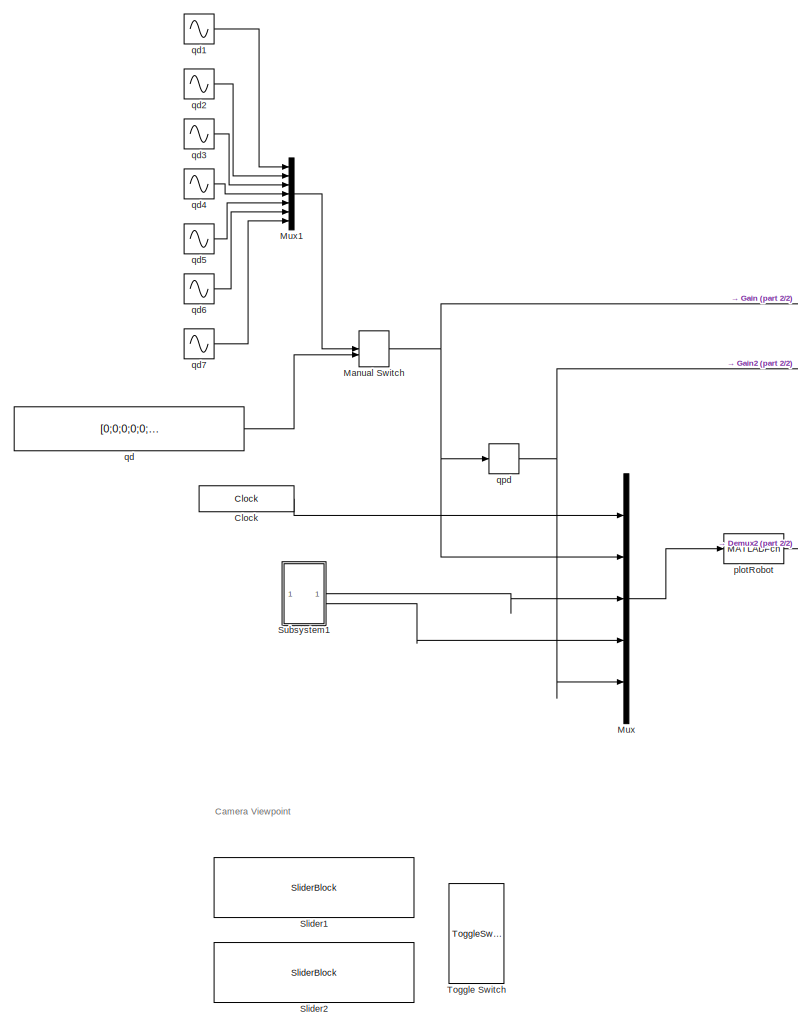
[diagram: root canvas - part 1/2, left side, full height]
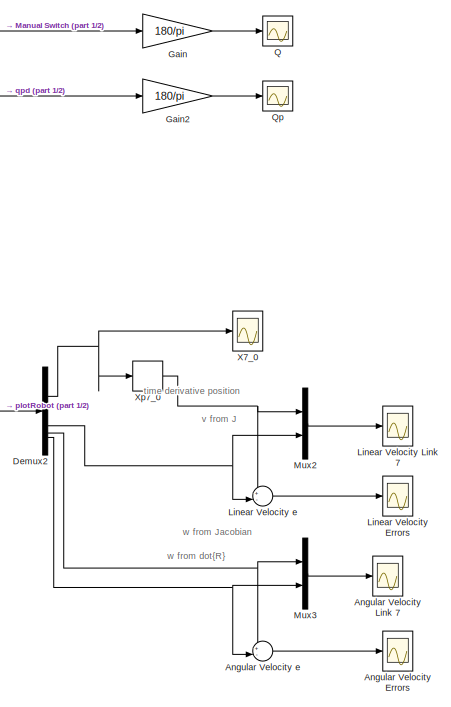
[diagram: root canvas - part 2/2, middle right region]
MODEL slx_c7681ada5e8a
KIND model
CONFIG AbsTol = auto
CONFIG EnableMultiTasking = on
CONFIG FixedStep = 0.001
CONFIG MaxStep = auto
CONFIG MinStep = auto
CONFIG RelTol = 1e-3
CONFIG SampleTimeConstraint = Unconstrained
CONFIG SolverName = ode1
CONFIG StartTime = 0.0
CONFIG StopTime = 20
BLOCK [Scope] Angular Velocity Errors
  Floating = off
  NumInputPorts = 1
  ScopeSpecificationString = Simulink.scopes.TimeScopeBlockCfg('CurrentConfiguration', extmgr.ConfigurationSet(extmgr.Configuration('Core','General UI',true),extmgr.Configuration('Core','Source UI',true),extmgr.Configuration('Sources','WiredSimulink',true,'DataLoggingVariableName','ScopeData2','DataLoggingSaveFormat','StructureWithTime','DataLoggingDecimation','1','DataLoggingDecimateData',true),extmgr.Configuration('Visuals'...<+1748ch>
BLOCK [Scope] Angular Velocity Link 7
  Floating = off
  NumInputPorts = 1
  ScopeSpecificationString = Simulink.scopes.TimeScopeBlockCfg('CurrentConfiguration', extmgr.ConfigurationSet(extmgr.Configuration('Core','General UI',true),extmgr.Configuration('Core','Source UI',true),extmgr.Configuration('Sources','WiredSimulink',true,'DataLoggingVariableName','ScopeData6','DataLoggingSaveFormat','StructureWithTime','DataLoggingDecimation','1','DataLoggingDecimateData',true),extmgr.Configuration('Visuals'...<+1786ch>
BLOCK [Sum] Angular Velocity e
  Inputs = +-|
BLOCK [Clock] Clock
  DisplayTime = on
BLOCK [Demux] Demux2
BLOCK [Gain] Gain
  Gain = 180/pi
BLOCK [Gain] Gain2
  Gain = 180/pi
BLOCK [Scope] Linear Velocity Errors
  Floating = off
  NumInputPorts = 1
  ScopeSpecificationString = Simulink.scopes.TimeScopeBlockCfg('CurrentConfiguration', extmgr.ConfigurationSet(extmgr.Configuration('Core','General UI',true),extmgr.Configuration('Core','Source UI',true),extmgr.Configuration('Sources','WiredSimulink',true,'DataLoggingVariableName','ScopeData1','DataLoggingSaveFormat','StructureWithTime','DataLoggingDecimation','1','DataLoggingDecimateData',true),extmgr.Configuration('Visuals'...<+1748ch>
BLOCK [Scope] Linear Velocity Link 7
  Floating = off
  NumInputPorts = 1
  ScopeSpecificationString = Simulink.scopes.TimeScopeBlockCfg('CurrentConfiguration', extmgr.ConfigurationSet(extmgr.Configuration('Core','General UI',true),extmgr.Configuration('Core','Source UI',true),extmgr.Configuration('Sources','WiredSimulink',true,'DataLoggingVariableName','ScopeData5','DataLoggingSaveFormat','StructureWithTime','DataLoggingDecimation','1','DataLoggingDecimateData',true),extmgr.Configuration('Visuals'...<+1749ch>
BLOCK [Sum] Linear Velocity e
  Inputs = +-|
BLOCK [ManualSwitch] Manual Switch
  CurrentSetting = 0
BLOCK [Mux] Mux
  DisplayOption = bar
  Inputs = 5
BLOCK [Mux] Mux1
  DisplayOption = bar
  Inputs = 7
BLOCK [Mux] Mux2
  DisplayOption = bar
  Inputs = 2
BLOCK [Mux] Mux3
  DisplayOption = bar
  Inputs = 2
BLOCK [Scope] Q
  Floating = off
  NumInputPorts = 1
  ScopeSpecificationString = Simulink.scopes.TimeScopeBlockCfg('CurrentConfiguration', extmgr.ConfigurationSet(extmgr.Configuration('Core','General UI',true),extmgr.Configuration('Core','Source UI',true),extmgr.Configuration('Sources','WiredSimulink',true,'DataLoggingSaveFormat','StructureWithTime','DataLoggingDecimation','1','DataLoggingDecimateData',true),extmgr.Configuration('Visuals','Time Domain',true,'SerializedDisplays...<+1604ch>
BLOCK [Scope] Qp
  Floating = off
  NumInputPorts = 1
  ScopeSpecificationString = Simulink.scopes.TimeScopeBlockCfg('CurrentConfiguration', extmgr.ConfigurationSet(extmgr.Configuration('Core','General UI',true),extmgr.Configuration('Core','Source UI',true),extmgr.Configuration('Sources','WiredSimulink',true,'DataLoggingSaveFormat','StructureWithTime','DataLoggingDecimation','1','DataLoggingDecimateData',true,'DataLoggingVariableName','ScopeData3'),extmgr.Configuration('Visuals'...<+1643ch>
BLOCK [SliderBlock] Slider1
  ScaleMax = 180
  ScaleMin = -180
  TickInterval = 180
BLOCK [SliderBlock] Slider2
  ScaleMax = 180
  ScaleMin = -180
  TickInterval = 180
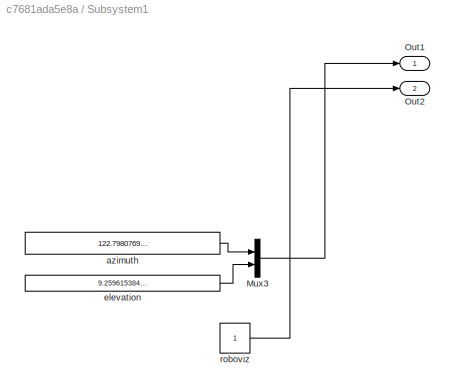
BLOCK [SubSystem] Subsystem1
BLOCK [Mux] Subsystem1/Mux3
  DisplayOption = bar
  Inputs = 2
BLOCK [Outport] Subsystem1/Out1
BLOCK [Outport] Subsystem1/Out2
  Port = 2
BLOCK [Constant] Subsystem1/azimuth
  Value = 122.7980769230769
BLOCK [Constant] Subsystem1/elevation
  Value = 9.259615384615358
BLOCK [Constant] Subsystem1/roboviz
BLOCK [ToggleSwitchBlock] Toggle Switch
BLOCK [Scope] X7_0
  Floating = off
  NumInputPorts = 1
  ScopeSpecificationString = Simulink.scopes.TimeScopeBlockCfg('CurrentConfiguration', extmgr.ConfigurationSet(extmgr.Configuration('Core','General UI',true),extmgr.Configuration('Core','Source UI',true),extmgr.Configuration('Sources','WiredSimulink',true,'DataLoggingVariableName','ScopeData1','DataLoggingSaveFormat','StructureWithTime','DataLoggingLimitDataPoints',true,'DataLoggingDecimation','1','DataLoggingDecimateData',tr...<+1739ch>
BLOCK [Derivative] Xp7_0
BLOCK [MATLABFcn] plotRobot
  MATLABFcn = plotRobot(u)
  OutputDimensions = 12
BLOCK [Constant] qd
  Value = [0;0;0;0;0;0;0]
BLOCK [Sin] qd1
  SampleTime = 0
BLOCK [Sin] qd2
  Amplitude = 0.5
  Bias = 0.3
  Frequency = 0.75
  SampleTime = 0
BLOCK [Sin] qd3
  Amplitude = pi
  Frequency = 0.5
  SampleTime = 0
BLOCK [Sin] qd4
  Amplitude = pi
  Frequency = 0.5
  SampleTime = 0
BLOCK [Sin] qd5
  Amplitude = pi
  Frequency = 0.5
  SampleTime = 0
BLOCK [Sin] qd6
  Amplitude = pi
  Frequency = 0.5
  SampleTime = 0
BLOCK [Sin] qd7
  Amplitude = pi
  Frequency = 0.5
  SampleTime = 0
BLOCK [Derivative] qpd
ANNOTATION (root): Camera Viewpoint
ANNOTATION (root): time derivative position
ANNOTATION (root): v from J
ANNOTATION (root): w from Jacobian
ANNOTATION (root): w from dot{R}
LINE Angular Velocity e:1 -> Angular Velocity Errors:1
LINE Clock:1 -> Mux:1
NET Demux2:1 -> X7_0:1, Xp7_0:1
NET Demux2:2 -> Linear Velocity e:2, Mux2:2
NET Demux2:3 -> Angular Velocity e:1, Mux3:1
NET Demux2:4 -> Angular Velocity e:2, Mux3:2
LINE Gain2:1 -> Qp:1
LINE Gain:1 -> Q:1
LINE Linear Velocity e:1 -> Linear Velocity Errors:1
NET Manual Switch:1 -> Gain:1, Mux:2, qpd:1
LINE Mux1:1 -> Manual Switch:1
LINE Mux2:1 -> Linear Velocity Link 7:1
LINE Mux3:1 -> Angular Velocity Link 7:1
LINE Mux:1 -> plotRobot:1
LINE Subsystem1/Mux3:1 -> Subsystem1/Out1:1
LINE Subsystem1/azimuth:1 -> Subsystem1/Mux3:1
LINE Subsystem1/elevation:1 -> Subsystem1/Mux3:2
LINE Subsystem1/roboviz:1 -> Subsystem1/Out2:1
LINE Subsystem1:1 -> Mux:3
LINE Subsystem1:2 -> Mux:4
NET Xp7_0:1 -> Linear Velocity e:1, Mux2:1
LINE plotRobot:1 -> Demux2:1
LINE qd1:1 -> Mux1:1
LINE qd2:1 -> Mux1:2
LINE qd3:1 -> Mux1:3
LINE qd4:1 -> Mux1:4
LINE qd5:1 -> Mux1:5
LINE qd6:1 -> Mux1:6
LINE qd7:1 -> Mux1:7
LINE qd:1 -> Manual Switch:2
NET qpd:1 -> Gain2:1, Mux:5
note: NET lines group one-source signal fan-out (src -> all destinations, sorted); 1:1 wires keep LINE
